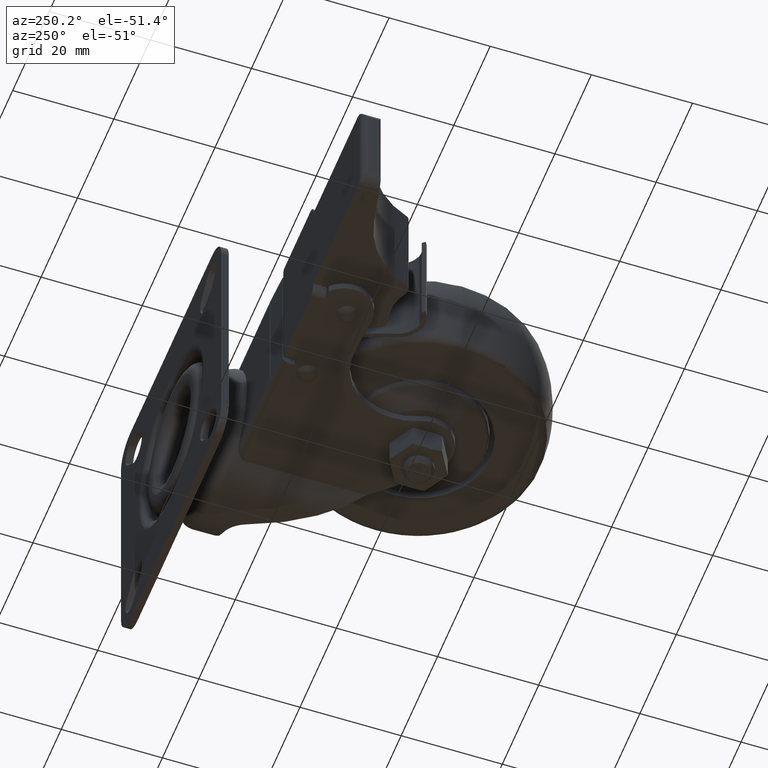
[diagram: clean part render]
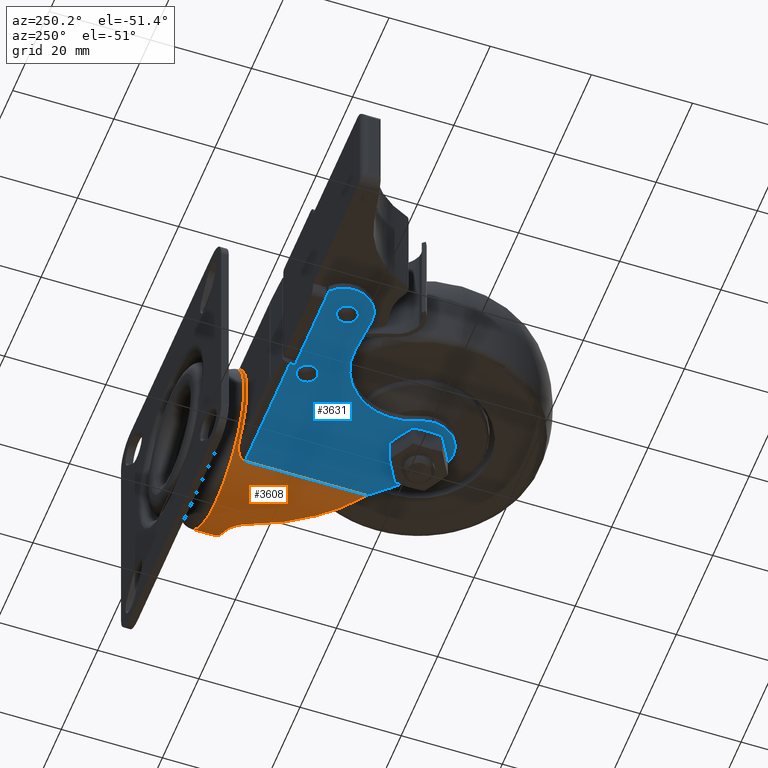
[diagram: same view with the hole feature highlighted: cylindrical wall and planar end face, labeled with their STEP entity ids]
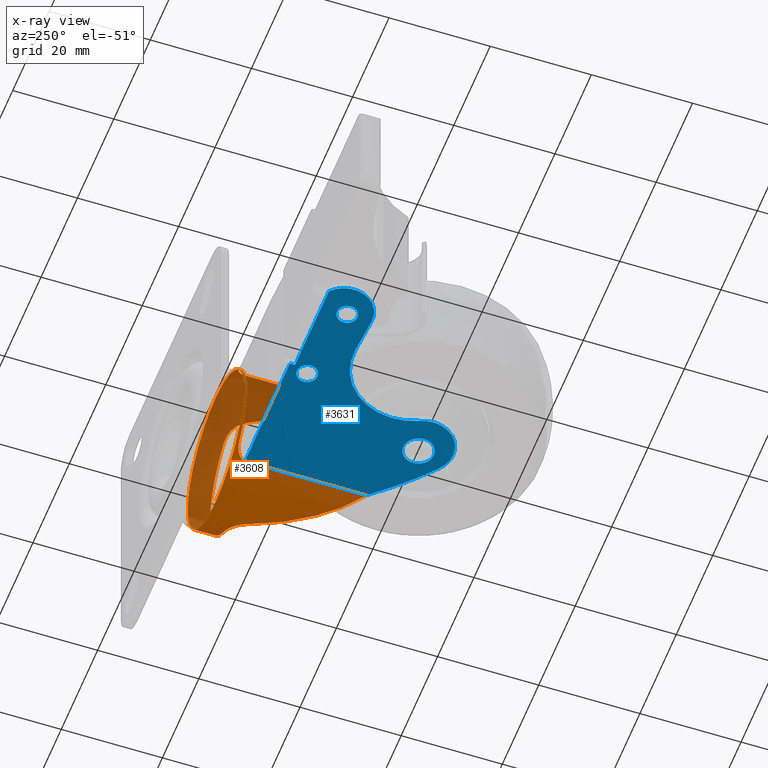
[diagram: x-ray of the same camera — body ghosted, the hole faces saturated]
A machine part, auxiliary view. The highlighted faces form one hole feature of diameter 31 mm: the cylindrical wall (entity #3608, orange) and its adjacent planar end face (entity #3631, blue) — they share a circular edge in the B-rep.
The next image is the same camera in x-ray (body ghosted, the hole faces saturated) — the bore reads through the body.
Wall:
#351=FACE_OUTER_BOUND('',#583,.T.);
#583=EDGE_LOOP('',(#2451,#2452,#2453,#2454,#2455,#2456,#2457,#2458,#2459,
#2460,#2461,#2462,#2463,#2464));
#858=B_SPLINE_CURVE_WITH_KNOTS('',3,(#5819,#5820,#5821,#5822,#5823,#5824),
 .UNSPECIFIED.,.F.,.F.,(4,2,4),(8.89543559247743,9.59211510363405,9.63743651702789),
 .UNSPECIFIED.);
#859=B_SPLINE_CURVE_WITH_KNOTS('',3,(#5826,#5827,#5828,#5829,#5830,#5831,
#5832,#5833),.UNSPECIFIED.,.F.,.F.,(4,2,2,4),(0.903664909216662,1.11053025028595,
1.31739559135524,1.4628000171835),.UNSPECIFIED.);
#860=B_SPLINE_CURVE_WITH_KNOTS('',3,(#5837,#5838,#5839,#5840,#5841,#5842,
#5843,#5844),.UNSPECIFIED.,.F.,.F.,(4,2,2,4),(1.92009658648421,2.06550101231248,
2.27236635338177,2.47923169445106),.UNSPECIFIED.);
#861=B_SPLINE_CURVE_WITH_KNOTS('',3,(#5846,#5847,#5848,#5849,#5850,#5851,
#5852,#5853,#5854,#5855),.UNSPECIFIED.,.F.,.F.,(4,2,2,2,4),(1.8520761589036,
1.89739757229744,2.84609635844616,3.79479514459488,4.13036730375378),
 .UNSPECIFIED.);
#862=B_SPLINE_CURVE_WITH_KNOTS('',3,(#5859,#5860,#5861,#5862,#5863,#5864,
#5865,#5866,#5867,#5868,#5869,#5870),.UNSPECIFIED.,.F.,.F.,(4,2,2,2,2,4),
(-1.4685079956606,-1.4300083498062,-1.39150870395181,-1.31450941224302,
-1.19859270854032,-1.08267600483762),.UNSPECIFIED.);
#863=B_SPLINE_CURVE_WITH_KNOTS('',3,(#5874,#5875,#5876,#5877,#5878,#5879,
#5880,#5881,#5882,#5883,#5884,#5885),.UNSPECIFIED.,.F.,.F.,(4,2,2,2,2,4),
(-1.12008598865328,-1.00416928495058,-0.888252581247877,-0.811253289539088,
-0.772753643684693,-0.734253997830298),.UNSPECIFIED.);
#864=B_SPLINE_CURVE_WITH_KNOTS('',3,(#5888,#5889,#5890,#5891,#5892,#5893,
#5894,#5895),.UNSPECIFIED.,.F.,.F.,(4,2,2,4),(7.35914537217771,7.69471753133661,
8.64341631748533,8.89543559247743),.UNSPECIFIED.);
#878=LINE('',#5817,#1090);
#879=LINE('',#5857,#1091);
#880=LINE('',#5887,#1092);
#1090=VECTOR('',#4585,15.5);
#1091=VECTOR('',#4588,1000.);
#1092=VECTOR('',#4591,1000.);
#1302=CIRCLE('',#4069,15.5);
#1303=CIRCLE('',#4070,15.5);
#1304=CIRCLE('',#4071,15.5);
#1562=VERTEX_POINT('',#5814);
#1563=VERTEX_POINT('',#5816);
#1564=VERTEX_POINT('',#5818);
#1565=VERTEX_POINT('',#5825);
#1566=VERTEX_POINT('',#5834);
#1567=VERTEX_POINT('',#5836);
#1568=VERTEX_POINT('',#5845);
#1569=VERTEX_POINT('',#5856);
#1570=VERTEX_POINT('',#5858);
#1571=VERTEX_POINT('',#5871);
#1572=VERTEX_POINT('',#5873);
#1573=VERTEX_POINT('',#5886);
#1907=EDGE_CURVE('',#1562,#1562,#1302,.T.);
#1908=EDGE_CURVE('',#1562,#1563,#878,.T.);
#1909=EDGE_CURVE('',#1563,#1564,#858,.T.);
#1910=EDGE_CURVE('',#1565,#1564,#859,.T.);
#1911=EDGE_CURVE('',#1566,#1565,#1303,.T.);
#1912=EDGE_CURVE('',#1567,#1566,#860,.T.);
#1913=EDGE_CURVE('',#1567,#1568,#861,.T.);
#1914=EDGE_CURVE('',#1568,#1569,#879,.F.);
#1915=EDGE_CURVE('',#1569,#1570,#862,.T.);
#1916=EDGE_CURVE('',#1570,#1571,#1304,.F.);
#1917=EDGE_CURVE('',#1571,#1572,#863,.T.);
#1918=EDGE_CURVE('',#1572,#1573,#880,.T.);
#1919=EDGE_CURVE('',#1573,#1563,#864,.T.);
#2451=ORIENTED_EDGE('',*,*,#1907,.T.);
#2452=ORIENTED_EDGE('',*,*,#1908,.T.);
#2453=ORIENTED_EDGE('',*,*,#1909,.T.);
#2454=ORIENTED_EDGE('',*,*,#1910,.F.);
#2455=ORIENTED_EDGE('',*,*,#1911,.F.);
#2456=ORIENTED_EDGE('',*,*,#1912,.F.);
#2457=ORIENTED_EDGE('',*,*,#1913,.T.);
#2458=ORIENTED_EDGE('',*,*,#1914,.T.);
#2459=ORIENTED_EDGE('',*,*,#1915,.T.);
#2460=ORIENTED_EDGE('',*,*,#1916,.T.);
#2461=ORIENTED_EDGE('',*,*,#1917,.T.);
#2462=ORIENTED_EDGE('',*,*,#1918,.T.);
#2463=ORIENTED_EDGE('',*,*,#1919,.T.);
#2464=ORIENTED_EDGE('',*,*,#1908,.F.);
#3539=CYLINDRICAL_SURFACE('',#4068,15.5);
#3608=ADVANCED_FACE('',(#351),#3539,.T.);
#4068=AXIS2_PLACEMENT_3D('',#5813,#4581,#4582);
#4069=AXIS2_PLACEMENT_3D('',#5815,#4583,#4584);
#4070=AXIS2_PLACEMENT_3D('',#5835,#4586,#4587);
#4071=AXIS2_PLACEMENT_3D('',#5872,#4589,#4590);
#4581=DIRECTION('center_axis',(0.,1.,0.));
#4582=DIRECTION('ref_axis',(0.,0.,-1.));
#4583=DIRECTION('center_axis',(0.,-1.,0.));
#4584=DIRECTION('ref_axis',(0.,0.,-1.));
#4585=DIRECTION('',(0.,-1.,0.));
#4586=DIRECTION('center_axis',(0.,-1.,0.));
#4587=DIRECTION('ref_axis',(0.,0.,-1.));
#4588=DIRECTION('',(0.,-1.,0.));
#4589=DIRECTION('center_axis',(0.,-1.,0.));
#4590=DIRECTION('ref_axis',(0.,0.,-1.));
#4591=DIRECTION('',(0.,-1.,0.));
#5813=CARTESIAN_POINT('Origin',(22.,-7.88,0.));
#5814=CARTESIAN_POINT('',(22.,32.162,15.5));
#5815=CARTESIAN_POINT('Origin',(22.,32.162,0.));
#5816=CARTESIAN_POINT('',(21.9999999993967,18.0284523773647,15.5));
#5817=CARTESIAN_POINT('',(22.,-7.88,15.5));
#5818=CARTESIAN_POINT('',(25.5882097250245,24.9657567713356,15.0789505924398));
#5819=CARTESIAN_POINT('Ctrl Pts',(21.9999999987935,18.0284523773647,15.5));
#5820=CARTESIAN_POINT('Ctrl Pts',(23.2085762334202,20.1258085065393,15.5000000000941));
#5821=CARTESIAN_POINT('Ctrl Pts',(24.3441120514485,22.3027059734243,15.3588726951654));
#5822=CARTESIAN_POINT('Ctrl Pts',(25.4538291527719,24.6752887129496,15.1104567030799));
#5823=CARTESIAN_POINT('Ctrl Pts',(25.5212180873941,24.8204200300011,15.0948920231227));
#5824=CARTESIAN_POINT('Ctrl Pts',(25.5882097250251,24.9657567713353,15.0789505924396));
#5825=CARTESIAN_POINT('',(30.03,27.67,13.2577939341355));
#5826=CARTESIAN_POINT('Ctrl Pts',(30.03,27.67,13.2577939341355));
#5827=CARTESIAN_POINT('Ctrl Pts',(29.440198265804,27.67,13.6150259102186));
#5828=CARTESIAN_POINT('Ctrl Pts',(28.7797682915065,27.5584037693603,13.9554017994103));
#5829=CARTESIAN_POINT('Ctrl Pts',(27.5232582688579,27.0490203913155,14.4986934674397));
#5830=CARTESIAN_POINT('Ctrl Pts',(26.9287476748785,26.6496524937845,14.7037525487641));
#5831=CARTESIAN_POINT('Ctrl Pts',(26.1249314394772,25.8283911230895,14.945064208332));
#5832=CARTESIAN_POINT('Ctrl Pts',(25.8223071868499,25.4186844692152,15.0232444089109));
#5833=CARTESIAN_POINT('Ctrl Pts',(25.5882097250245,24.9657567713356,15.0789505924398));
#5834=CARTESIAN_POINT('',(30.03,27.67,-13.2577939341355));
#5835=CARTESIAN_POINT('Origin',(22.,27.67,0.));
#5836=CARTESIAN_POINT('',(25.5882097250245,24.9657567713356,-15.0789505924398));
#5837=CARTESIAN_POINT('Ctrl Pts',(25.5882097250245,24.9657567713356,-15.0789505924398));
#5838=CARTESIAN_POINT('Ctrl Pts',(25.8223071868499,25.4186844692152,-15.0232444089109));
#5839=CARTESIAN_POINT('Ctrl Pts',(26.1249314394772,25.8283911230895,-14.945064208332));
#5840=CARTESIAN_POINT('Ctrl Pts',(26.9287476748785,26.6496524937845,-14.7037525487641));
#5841=CARTESIAN_POINT('Ctrl Pts',(27.5232582688579,27.0490203913155,-14.4986934674397));
#5842=CARTESIAN_POINT('Ctrl Pts',(28.7797682915065,27.5584037693603,-13.9554017994103));
#5843=CARTESIAN_POINT('Ctrl Pts',(29.440198265804,27.67,-13.6150259102186));
#5844=CARTESIAN_POINT('Ctrl Pts',(30.03,27.67,-13.2577939341355));
#5845=CARTESIAN_POINT('',(13.1859487180979,5.47293876926752,-12.75));
#5846=CARTESIAN_POINT('Ctrl Pts',(25.5882097250251,24.9657567713353,-15.0789505924396));
#5847=CARTESIAN_POINT('Ctrl Pts',(25.5212180873941,24.8204200300011,-15.0948920231227));
#5848=CARTESIAN_POINT('Ctrl Pts',(25.4538291527719,24.6752887129496,-15.1104567030799));
#5849=CARTESIAN_POINT('Ctrl Pts',(23.9671986406043,21.4968625275604,-15.4432467385802));
#5850=CARTESIAN_POINT('Ctrl Pts',(22.3736910636776,18.5581236946264,-15.5905407998045));
#5851=CARTESIAN_POINT('Ctrl Pts',(18.948744096402,13.0111491735249,-15.2936079909266));
#5852=CARTESIAN_POINT('Ctrl Pts',(17.1171580689611,10.4026442962647,-14.8561397289305));
#5853=CARTESIAN_POINT('Ctrl Pts',(14.5909695468984,7.16975245467717,-13.6342912603984));
#5854=CARTESIAN_POINT('Ctrl Pts',(13.8901971840102,6.3067167352648,-13.2368456544119));
#5855=CARTESIAN_POINT('Ctrl Pts',(13.1859487180983,5.47293876926702,-12.7500000000003));
#5856=CARTESIAN_POINT('',(13.1859487180979,29.57,-12.75));
#5857=CARTESIAN_POINT('',(13.1859487180979,-7.88,-12.75));
#5858=CARTESIAN_POINT('',(10.8336442829364,31.57,-10.75));
#5859=CARTESIAN_POINT('Ctrl Pts',(13.1859487180979,29.57,-12.75));
#5860=CARTESIAN_POINT('Ctrl Pts',(13.1859487180979,29.698332152848,-12.75));
#5861=CARTESIAN_POINT('Ctrl Pts',(13.1678026495399,29.825757246953,-12.7375058505815));
#5862=CARTESIAN_POINT('Ctrl Pts',(13.0999740308388,30.0712907960277,-12.6902006509722));
#5863=CARTESIAN_POINT('Ctrl Pts',(13.0503054015868,30.1894003899002,-12.6553755537453));
#5864=CARTESIAN_POINT('Ctrl Pts',(12.8682248250935,30.5212045140775,-12.52529192965));
#5865=CARTESIAN_POINT('Ctrl Pts',(12.7020836389462,30.7124750665249,-12.4033101089268));
#5866=CARTESIAN_POINT('Ctrl Pts',(12.2889316527561,31.0885080688251,-12.0848416060441));
#5867=CARTESIAN_POINT('Ctrl Pts',(11.9954649989297,31.2682433000349,-11.8455505872291));
#5868=CARTESIAN_POINT('Ctrl Pts',(11.4018511002202,31.5096246182674,-11.3175540423678));
#5869=CARTESIAN_POINT('Ctrl Pts',(11.1016237592383,31.57,-11.0283585262567));
#5870=CARTESIAN_POINT('Ctrl Pts',(10.8336442829364,31.57,-10.75));
#5871=CARTESIAN_POINT('',(10.8336442829364,31.57,10.75));
#5872=CARTESIAN_POINT('Origin',(22.,31.57,0.));
#5873=CARTESIAN_POINT('',(13.1859487180979,29.57,12.75));
#5874=CARTESIAN_POINT('Ctrl Pts',(10.8336442829364,31.57,10.75));
#5875=CARTESIAN_POINT('Ctrl Pts',(11.1016237592383,31.57,11.0283585262567));
#5876=CARTESIAN_POINT('Ctrl Pts',(11.4018511002202,31.5096246182674,11.3175540423678));
#5877=CARTESIAN_POINT('Ctrl Pts',(11.9954649989297,31.2682433000349,11.8455505872291));
#5878=CARTESIAN_POINT('Ctrl Pts',(12.2889316527561,31.0885080688251,12.0848416060441));
#5879=CARTESIAN_POINT('Ctrl Pts',(12.7020836389462,30.7124750665249,12.4033101089268));
#5880=CARTESIAN_POINT('Ctrl Pts',(12.8682248250935,30.5212045140775,12.52529192965));
#5881=CARTESIAN_POINT('Ctrl Pts',(13.0503054015868,30.1894003899002,12.6553755537453));
#5882=CARTESIAN_POINT('Ctrl Pts',(13.0999740308388,30.0712907960277,12.6902006509722));
#5883=CARTESIAN_POINT('Ctrl Pts',(13.1678026495399,29.825757246953,12.7375058505815));
#5884=CARTESIAN_POINT('Ctrl Pts',(13.1859487180979,29.698332152848,12.75));
#5885=CARTESIAN_POINT('Ctrl Pts',(13.1859487180979,29.57,12.75));
#5886=CARTESIAN_POINT('',(13.1859487180979,5.47293876926752,12.75));
#5887=CARTESIAN_POINT('',(13.1859487180979,-7.88,12.75));
#5888=CARTESIAN_POINT('Ctrl Pts',(13.1859487180983,5.472938769267,12.7500000000003));
#5889=CARTESIAN_POINT('Ctrl Pts',(13.8901971840102,6.30671673526479,13.2368456544119));
#5890=CARTESIAN_POINT('Ctrl Pts',(14.5909695468984,7.16975245467716,13.6342912603984));
#5891=CARTESIAN_POINT('Ctrl Pts',(17.1171580689611,10.4026442962647,14.8561397289304));
#5892=CARTESIAN_POINT('Ctrl Pts',(18.948744096402,13.0111491735249,15.2936079909266));
#5893=CARTESIAN_POINT('Ctrl Pts',(21.1161315443989,16.5214058479391,15.4815140954618));
#5894=CARTESIAN_POINT('Ctrl Pts',(21.5628054185802,17.269747459809,15.499999999966));
#5895=CARTESIAN_POINT('Ctrl Pts',(21.9999999987935,18.0284523773647,15.5));
End face:
#233=FACE_BOUND('',#616,.T.);
#234=FACE_BOUND('',#617,.T.);
#235=FACE_BOUND('',#618,.T.);
#276=PLANE('',#4141);
#374=FACE_OUTER_BOUND('',#615,.T.);
#615=EDGE_LOOP('',(#2595,#2596,#2597,#2598,#2599,#2600,#2601,#2602,#2603));
#616=EDGE_LOOP('',(#2604));
#617=EDGE_LOOP('',(#2605));
#618=EDGE_LOOP('',(#2606));
#879=LINE('',#5857,#1091);
#903=LINE('',#6070,#1115);
#905=LINE('',#6074,#1117);
#908=LINE('',#6082,#1120);
#918=LINE('',#6130,#1130);
#1091=VECTOR('',#4588,1000.);
#1115=VECTOR('',#4700,1000.);
#1117=VECTOR('',#4704,1000.);
#1120=VECTOR('',#4713,1000.);
#1130=VECTOR('',#4769,1000.);
#1323=CIRCLE('',#4096,86.);
#1334=CIRCLE('',#4117,5.65);
#1335=CIRCLE('',#4120,12.);
#1336=CIRCLE('',#4122,6.1);
#1350=CIRCLE('',#4142,2.025);
#1351=CIRCLE('',#4143,2.025);
#1352=CIRCLE('',#4144,3.);
#1568=VERTEX_POINT('',#5845);
#1569=VERTEX_POINT('',#5856);
#1607=VERTEX_POINT('',#6027);
#1621=VERTEX_POINT('',#6067);
#1622=VERTEX_POINT('',#6069);
#1623=VERTEX_POINT('',#6073);
#1624=VERTEX_POINT('',#6077);
#1625=VERTEX_POINT('',#6081);
#1626=VERTEX_POINT('',#6085);
#1641=VERTEX_POINT('',#6131);
#1642=VERTEX_POINT('',#6133);
#1643=VERTEX_POINT('',#6135);
#1914=EDGE_CURVE('',#1568,#1569,#879,.F.);
#1960=EDGE_CURVE('',#1568,#1607,#1323,.F.);
#1980=EDGE_CURVE('',#1621,#1622,#903,.T.);
#1982=EDGE_CURVE('',#1622,#1623,#905,.T.);
#1984=EDGE_CURVE('',#1624,#1623,#1334,.F.);
#1986=EDGE_CURVE('',#1624,#1625,#908,.T.);
#1988=EDGE_CURVE('',#1625,#1626,#1335,.F.);
#1990=EDGE_CURVE('',#1607,#1626,#1336,.F.);
#2011=EDGE_CURVE('',#1569,#1621,#918,.T.);
#2012=EDGE_CURVE('',#1641,#1641,#1350,.T.);
#2013=EDGE_CURVE('',#1642,#1642,#1351,.T.);
#2014=EDGE_CURVE('',#1643,#1643,#1352,.T.);
#2595=ORIENTED_EDGE('',*,*,#1914,.F.);
#2596=ORIENTED_EDGE('',*,*,#1960,.T.);
#2597=ORIENTED_EDGE('',*,*,#1990,.T.);
#2598=ORIENTED_EDGE('',*,*,#1988,.F.);
#2599=ORIENTED_EDGE('',*,*,#1986,.F.);
#2600=ORIENTED_EDGE('',*,*,#1984,.T.);
#2601=ORIENTED_EDGE('',*,*,#1982,.F.);
#2602=ORIENTED_EDGE('',*,*,#1980,.F.);
#2603=ORIENTED_EDGE('',*,*,#2011,.F.);
#2604=ORIENTED_EDGE('',*,*,#2012,.F.);
#2605=ORIENTED_EDGE('',*,*,#2013,.F.);
#2606=ORIENTED_EDGE('',*,*,#2014,.T.);
#3631=ADVANCED_FACE('',(#374,#233,#234,#235),#276,.F.);
#4096=AXIS2_PLACEMENT_3D('',#6029,#4655,#4656);
#4117=AXIS2_PLACEMENT_3D('',#6078,#4708,#4709);
#4120=AXIS2_PLACEMENT_3D('',#6086,#4717,#4718);
#4122=AXIS2_PLACEMENT_3D('',#6089,#4722,#4723);
#4141=AXIS2_PLACEMENT_3D('',#6129,#4767,#4768);
#4142=AXIS2_PLACEMENT_3D('',#6132,#4770,#4771);
#4143=AXIS2_PLACEMENT_3D('',#6134,#4772,#4773);
#4144=AXIS2_PLACEMENT_3D('',#6136,#4774,#4775);
#4588=DIRECTION('',(0.,-1.,0.));
#4655=DIRECTION('center_axis',(0.,0.,1.));
#4656=DIRECTION('ref_axis',(1.,0.,0.));
#4700=DIRECTION('',(7.06668449695016E-16,-1.,0.));
#4704=DIRECTION('',(-1.,0.,0.));
#4708=DIRECTION('center_axis',(0.,0.,1.));
#4709=DIRECTION('ref_axis',(1.,0.,0.));
#4713=DIRECTION('',(0.997329006712386,0.0730400737272723,0.));
#4717=DIRECTION('center_axis',(0.,0.,1.));
#4718=DIRECTION('ref_axis',(1.,0.,0.));
#4722=DIRECTION('center_axis',(0.,0.,1.));
#4723=DIRECTION('ref_axis',(1.,0.,0.));
#4767=DIRECTION('center_axis',(0.,0.,1.));
#4768=DIRECTION('ref_axis',(1.,0.,0.));
#4769=DIRECTION('',(-1.,0.,0.));
#4770=DIRECTION('center_axis',(0.,0.,-1.));
#4771=DIRECTION('ref_axis',(-1.,0.,0.));
#4772=DIRECTION('center_axis',(0.,0.,-1.));
#4773=DIRECTION('ref_axis',(-1.,0.,0.));
#4774=DIRECTION('center_axis',(0.,0.,1.));
#4775=DIRECTION('ref_axis',(1.,0.,0.));
#5845=CARTESIAN_POINT('',(13.1859487180979,5.47293876926752,-12.75));
#5856=CARTESIAN_POINT('',(13.1859487180979,29.57,-12.75));
#5857=CARTESIAN_POINT('',(13.1859487180979,-7.88,-12.75));
#6027=CARTESIAN_POINT('',(2.66690643386661,-4.99630666106634,-12.75));
#6029=CARTESIAN_POINT('Origin',(-52.5140477633581,60.9662758678468,-12.75));
#6067=CARTESIAN_POINT('',(-11.5,29.57,-12.75));
#6069=CARTESIAN_POINT('',(-11.5,28.57,-12.75));
#6070=CARTESIAN_POINT('',(-11.5,-10.,-12.75));
#6073=CARTESIAN_POINT('',(-30.0988452299135,28.57,-12.75));
#6074=CARTESIAN_POINT('',(24.5,28.57,-12.75));
#6077=CARTESIAN_POINT('',(-26.09,18.64,-12.75));
#6078=CARTESIAN_POINT('Origin',(-26.4218182910146,24.2802479220109,-12.75));
#6081=CARTESIAN_POINT('',(-18.580288032359,19.1899789057527,-12.75));
#6082=CARTESIAN_POINT('',(22.1438294716644,22.1724375778183,-12.75));
#6085=CARTESIAN_POINT('',(-6.79497945466438,2.22228299906794,-12.75));
#6086=CARTESIAN_POINT('Origin',(-17.7038071495381,7.22203082506443,-12.75));
#6089=CARTESIAN_POINT('Origin',(-1.24999999999991,-0.319999999999813,-12.75));
#6129=CARTESIAN_POINT('Origin',(24.5,-10.,-12.75));
#6130=CARTESIAN_POINT('',(24.5,29.57,-12.75));
#6131=CARTESIAN_POINT('',(-10.3,27.75,-12.75));
#6132=CARTESIAN_POINT('Origin',(-10.3,25.725,-12.75));
#6133=CARTESIAN_POINT('',(-26.1,21.45,-12.75));
#6134=CARTESIAN_POINT('Origin',(-26.1,23.475,-12.75));
#6135=CARTESIAN_POINT('',(-3.,3.67394039744206E-16,-12.75));
#6136=CARTESIAN_POINT('Origin',(0.,0.,-12.75));